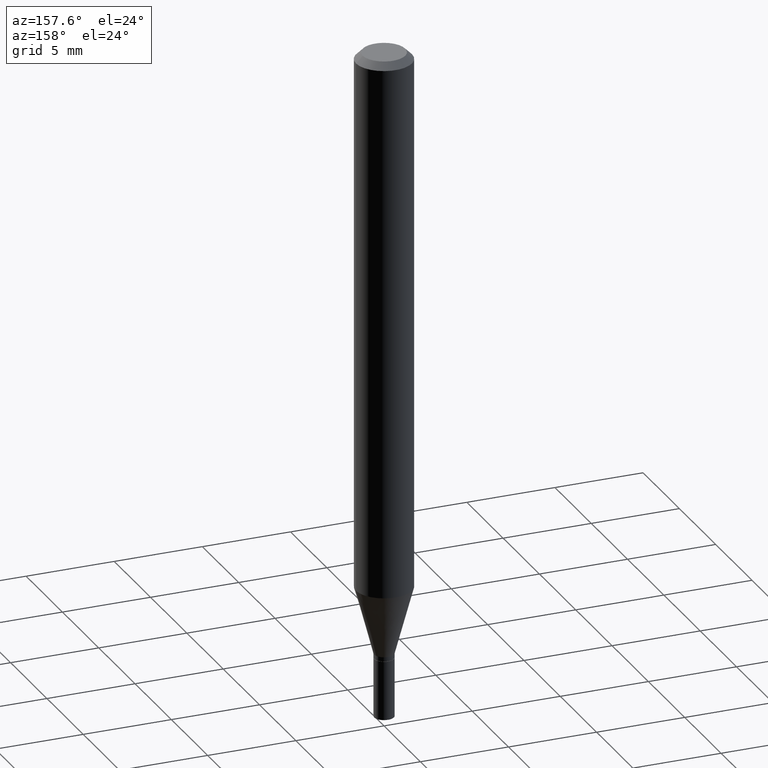
[diagram: clean part render]
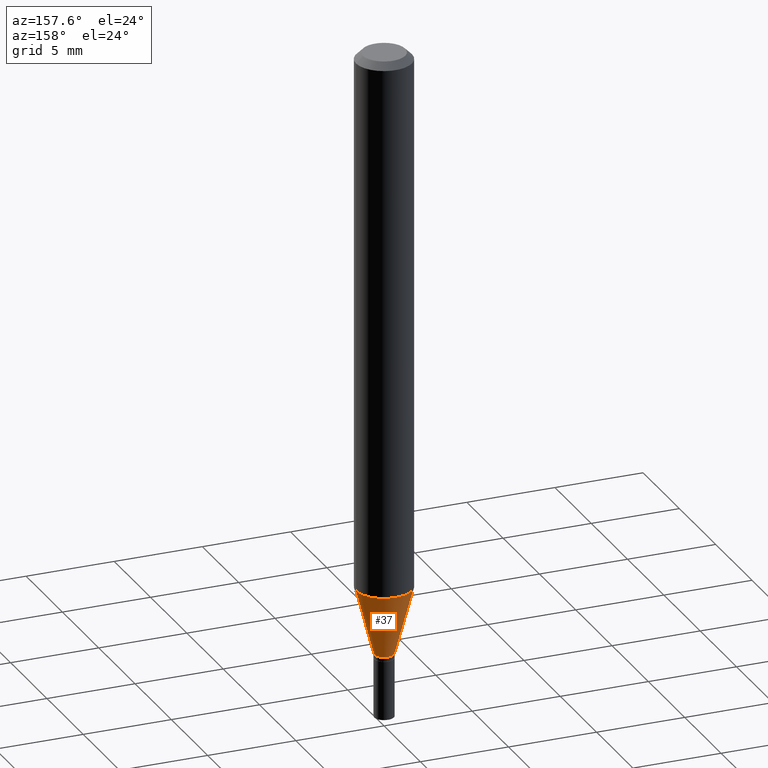
[diagram: same view with one face highlighted and labeled with its STEP entity id]
A machine part, auxiliary view. The second image highlights one B-rep face of the part: STEP entity #37.
In plain terms, the highlighted conical surface has half-angle 15 deg.
Its self-contained STEP definition (entity closure, byte-faithful):
#9 = VECTOR ( 'NONE', #84, 39.37007874015747433 ) ;
#21 = CARTESIAN_POINT ( 'NONE',  ( 3.320946638799415978E-29, -4.741431658148991442E-15, -1.358000000000000096 ) ) ;
#37 = ADVANCED_FACE ( 'NONE', ( #158 ), #337, .T. ) ;
#47 = AXIS2_PLACEMENT_3D ( 'NONE', #251, #433, #309 ) ;
#57 = ORIENTED_EDGE ( 'NONE', *, *, #381, .T. ) ;
#81 = LINE ( 'NONE', #396, #9 ) ;
#82 = ORIENTED_EDGE ( 'NONE', *, *, #227, .F. ) ;
#84 = DIRECTION ( 'NONE',  ( -0.2588190451025213501, 5.211531920934551042E-15, 0.9659258262890682012 ) ) ;
#86 = CARTESIAN_POINT ( 'NONE',  ( 0.02199999999999992240, -4.895056837058089278E-15, -1.358000000000000096 ) ) ;
#95 = DIRECTION ( 'NONE',  ( 0.2588190451025213501, 1.565188264969621968E-15, 0.9659258262890682012 ) ) ;
#96 = EDGE_CURVE ( 'NONE', #440, #463, #437, .T. ) ;
#116 = VECTOR ( 'NONE', #95, 39.37007874015747433 ) ;
#118 = DIRECTION ( 'NONE',  ( 1.000000000000000000, -6.982962677686270655E-15, 0.000000000000000000 ) ) ;
#143 = VERTEX_POINT ( 'NONE', #353 ) ;
#149 = CARTESIAN_POINT ( 'NONE',  ( -0.06250000000000000000, -3.769611825414159666E-15, -1.206851942293460711 ) ) ;
#158 = FACE_OUTER_BOUND ( 'NONE', #347, .T. ) ;
#195 = CARTESIAN_POINT ( 'NONE',  ( 2.951318778562602676E-29, -4.213701035264222282E-15, -1.206851942293460711 ) ) ;
#203 = EDGE_CURVE ( 'NONE', #143, #262, #81, .T. ) ;
#204 = CARTESIAN_POINT ( 'NONE',  ( 0.02199999999999992240, -4.895056837058089278E-15, -1.358000000000000096 ) ) ;
#227 = EDGE_CURVE ( 'NONE', #463, #262, #296, .T. ) ;
#237 = ORIENTED_EDGE ( 'NONE', *, *, #96, .F. ) ;
#251 = CARTESIAN_POINT ( 'NONE',  ( 3.320946638799415978E-29, -4.741431658148991442E-15, -1.358000000000000096 ) ) ;
#262 = VERTEX_POINT ( 'NONE', #149 ) ;
#266 = DIRECTION ( 'NONE',  ( -2.445468806185136597E-29, 3.491481338843145583E-15, 1.000000000000000000 ) ) ;
#296 = CIRCLE ( 'NONE', #346, 0.06250000000000000000 ) ;
#308 = AXIS2_PLACEMENT_3D ( 'NONE', #21, #402, #448 ) ;
#309 = DIRECTION ( 'NONE',  ( 1.000000000000000000, -6.982962677686269866E-15, 0.000000000000000000 ) ) ;
#312 = CARTESIAN_POINT ( 'NONE',  ( 0.06250000000000000000, -4.650136202619614741E-15, -1.206851942293460711 ) ) ;
#337 = CONICAL_SURFACE ( 'NONE', #308, 0.02199999999999992240, 0.2617993877991500740 ) ;
#346 = AXIS2_PLACEMENT_3D ( 'NONE', #195, #266, #118 ) ;
#347 = EDGE_LOOP ( 'NONE', ( #57, #369, #82, #237 ) ) ;
#353 = CARTESIAN_POINT ( 'NONE',  ( -0.02199999999999992240, -4.177362040847964858E-15, -1.358000000000000096 ) ) ;
#369 = ORIENTED_EDGE ( 'NONE', *, *, #203, .T. ) ;
#381 = EDGE_CURVE ( 'NONE', #440, #143, #452, .T. ) ;
#396 = CARTESIAN_POINT ( 'NONE',  ( -0.02199999999999992240, -4.585112256281770051E-15, -1.358000000000000096 ) ) ;
#402 = DIRECTION ( 'NONE',  ( -2.445468806185136597E-29, 3.491481338843145583E-15, 1.000000000000000000 ) ) ;
#433 = DIRECTION ( 'NONE',  ( -2.445468806185136597E-29, 3.491481338843145583E-15, 1.000000000000000000 ) ) ;
#437 = LINE ( 'NONE', #86, #116 ) ;
#440 = VERTEX_POINT ( 'NONE', #204 ) ;
#448 = DIRECTION ( 'NONE',  ( 1.000000000000000000, -6.982962677686269866E-15, 0.000000000000000000 ) ) ;
#452 = CIRCLE ( 'NONE', #47, 0.02199999999999992240 ) ;
#463 = VERTEX_POINT ( 'NONE', #312 ) ;